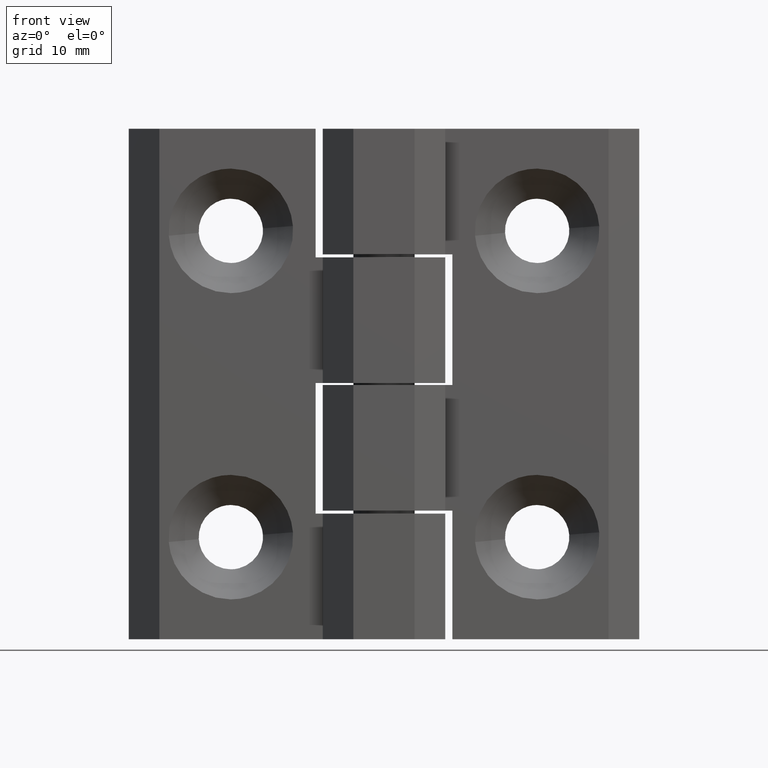
[diagram: clean part render]
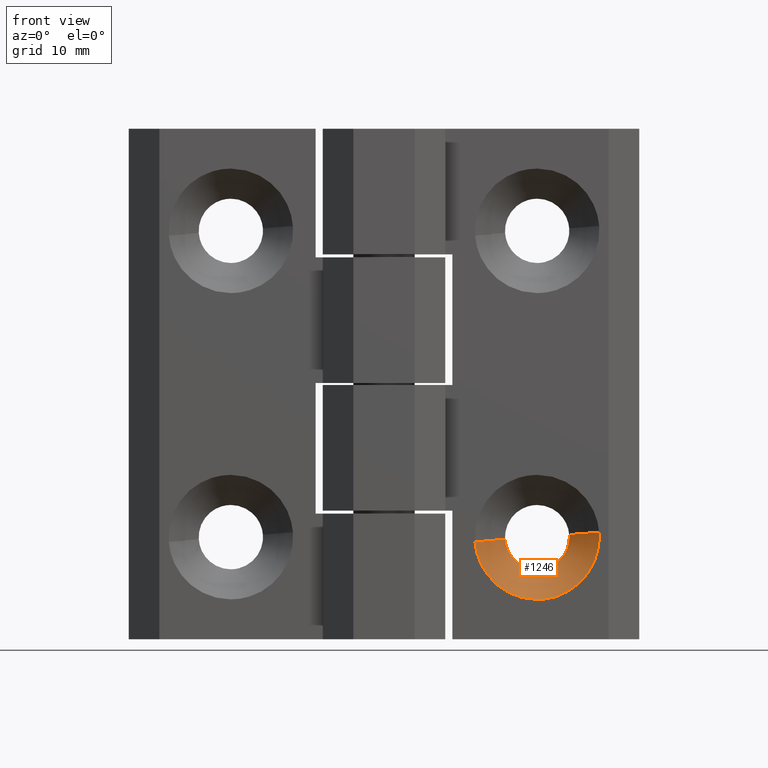
[diagram: same view with one face highlighted and labeled with its STEP entity id]
A machine part, front view. The second image highlights one B-rep face of the part: STEP entity #1246.
In plain terms, the highlighted face is a freeform B-spline surface patch.
Its self-contained STEP definition (entity closure, byte-faithful):
#937=CARTESIAN_POINT('',(18.129429528220928,3.450000163866196,9.640584707499176));
#938=VERTEX_POINT('',#937);
#939=CARTESIAN_POINT('',(15.000000712461651,3.450000163866196,6.850001037819396));
#940=VERTEX_POINT('',#939);
#941=CARTESIAN_POINT('',(18.129429528220932,3.450000163866196,9.640584707499176));
#942=CARTESIAN_POINT('',(17.808928949025468,3.450000163866195,6.850001037819395));
#943=CARTESIAN_POINT('',(15.000000712461651,3.450000163866196,6.850001037819396));
#951=(BOUNDED_CURVE()B_SPLINE_CURVE(2,(#941,#942,#943),.UNSPECIFIED.,.F.,.U.)B_SPLINE_CURVE_WITH_KNOTS((3,3),(0.269767755887751,0.500000000000000),.UNSPECIFIED.)CURVE()GEOMETRIC_REPRESENTATION_ITEM()RATIONAL_B_SPLINE_CURVE((0.957343736438684,0.730266147789276,1.0))REPRESENTATION_ITEM(''));
#952=EDGE_CURVE('',#938,#940,#951,.T.);
#991=CARTESIAN_POINT('',(11.855875220630450,3.450000163866179,9.807699214754114));
#992=VERTEX_POINT('',#991);
#998=CARTESIAN_POINT('',(15.000000712461651,3.450000163866196,6.850001037819396));
#999=CARTESIAN_POINT('',(12.036775538619558,3.450000163866196,6.850001037819396));
#1000=CARTESIAN_POINT('',(11.855875220630441,3.450000163866196,9.807699214754113));
#1008=(BOUNDED_CURVE()B_SPLINE_CURVE(2,(#998,#999,#1000),.UNSPECIFIED.,.F.,.U.)B_SPLINE_CURVE_WITH_KNOTS((3,3),(0.500000000000000,0.739332976895758),.UNSPECIFIED.)CURVE()GEOMETRIC_REPRESENTATION_ITEM()RATIONAL_B_SPLINE_CURVE((1.0,0.719603976115183,0.976072073079065))REPRESENTATION_ITEM(''));
#1009=EDGE_CURVE('',#940,#992,#1008,.T.);
#1036=CARTESIAN_POINT('',(18.140291173143300,3.450000163863354,10.247148119100739));
#1037=VERTEX_POINT('',#1036);
#1038=CARTESIAN_POINT('',(18.140291173143300,3.450000163863355,10.247148119100739));
#1039=CARTESIAN_POINT('',(18.150001574540330,3.450000163866195,10.123765770865315));
#1040=CARTESIAN_POINT('',(18.150001574540330,3.450000163866196,10.000001899898081));
#1041=CARTESIAN_POINT('',(18.150001574540333,3.450000163866196,9.819704560121375));
#1042=CARTESIAN_POINT('',(18.129429528220928,3.450000163866196,9.640584707499176));
#1050=(BOUNDED_CURVE()B_SPLINE_CURVE(2,(#1038,#1039,#1040,#1041,#1042),.UNSPECIFIED.,.F.,.U.)B_SPLINE_CURVE_WITH_KNOTS((3,2,3),(0.236331300630386,0.250000000000000,0.269767755887751),.UNSPECIFIED.)CURVE()GEOMETRIC_REPRESENTATION_ITEM()RATIONAL_B_SPLINE_CURVE((0.969723356166846,0.983986122578561,1.0,0.976840633397272,0.957343736438685))REPRESENTATION_ITEM(''));
#1051=EDGE_CURVE('',#1037,#938,#1050,.T.);
#1139=CARTESIAN_POINT('',(21.081197447341520,0.500000023745977,10.478602462490610));
#1140=VERTEX_POINT('',#1139);
#1141=CARTESIAN_POINT('',(18.140291173143300,3.450000163863354,10.247148119100739));
#1142=CARTESIAN_POINT('',(21.081197447341520,0.500000023745977,10.478602462490610));
#1143=QUASI_UNIFORM_CURVE('',1,(#1141,#1142),.UNSPECIFIED.,.F.,.U.);
#1144=EDGE_CURVE('',#1037,#1140,#1143,.T.);
#1161=CARTESIAN_POINT('',(8.918803977581773,0.500000023745975,9.521401337305553));
#1162=VERTEX_POINT('',#1161);
#1178=CARTESIAN_POINT('',(11.855875220630450,3.450000163866179,9.807699214754114));
#1179=CARTESIAN_POINT('',(8.918803977581773,0.500000023745975,9.521401337305553));
#1180=QUASI_UNIFORM_CURVE('',1,(#1178,#1179),.UNSPECIFIED.,.F.,.U.);
#1181=EDGE_CURVE('',#992,#1162,#1180,.T.);
#1187=CARTESIAN_POINT('',(11.925684907213995,3.523750167369133,9.854548490720037));
#1188=CARTESIAN_POINT('',(11.929434305086531,3.523750167369132,9.806907873714135));
#1189=CARTESIAN_POINT('',(12.174592769231934,3.523750167369133,6.691874235476639));
#1190=CARTESIAN_POINT('',(15.241360573057509,3.523750167369133,6.933234096072502));
#1191=CARTESIAN_POINT('',(18.308128376883083,3.523750167369133,7.174593956668364));
#1192=CARTESIAN_POINT('',(18.065056358494299,3.523750167369134,10.263116787951567));
#1193=CARTESIAN_POINT('',(18.063354233049651,3.523750167369131,10.284744342337788));
#1194=CARTESIAN_POINT('',(8.828290589539648,0.424406270158215,9.708003180604068));
#1195=CARTESIAN_POINT('',(8.835817531555597,0.424406270158215,9.612364314312035));
#1196=CARTESIAN_POINT('',(9.327974834427176,0.424406270158215,3.358912861622311));
#1197=CARTESIAN_POINT('',(15.484532292582299,0.424406270158215,3.843444441742958));
#1198=CARTESIAN_POINT('',(21.641089750737418,0.424406270158215,4.327976021863605));
#1199=CARTESIAN_POINT('',(21.153121002071948,0.424406270158215,10.528206847262092));
#1200=CARTESIAN_POINT('',(21.149703973535296,0.424406270158215,10.571624311437919));
#1208=(BOUNDED_SURFACE()B_SPLINE_SURFACE(2,1,((#1187,#1194),(#1188,#1195),(#1189,#1196),(#1190,#1197),(#1191,#1198),(#1192,#1199),(#1193,#1200)),.UNSPECIFIED.,.F.,.F.,.U.)B_SPLINE_SURFACE_WITH_KNOTS((3,1,2,1,3),(2,2),(0.0,0.229233173063570,10.461293587331550,20.693354001599531,20.796306009318538),(0.0,4.384205706882022),.UNSPECIFIED.)GEOMETRIC_REPRESENTATION_ITEM()RATIONAL_B_SPLINE_SURFACE(((1.013123621088825,1.013123621088825),(1.006561810544413,1.006561810544413),(0.707106781186548,0.707106781186548),(1.0,1.0),(0.707106781186548,0.707106781186548),(1.002947006145710,1.002947006145710),(1.005894012291421,1.005894012291421)))REPRESENTATION_ITEM('')SURFACE());
#1209=ORIENTED_EDGE('',*,*,#1051,.T.);
#1210=ORIENTED_EDGE('',*,*,#952,.T.);
#1211=ORIENTED_EDGE('',*,*,#1009,.T.);
#1212=ORIENTED_EDGE('',*,*,#1181,.T.);
#1213=CARTESIAN_POINT('',(15.000000712461651,0.500000023748726,3.900000897701931));
#1214=VERTEX_POINT('',#1213);
#1215=CARTESIAN_POINT('',(15.000000712461651,0.500000023748726,3.900000897701931));
#1216=CARTESIAN_POINT('',(9.361217786965144,0.500000023748726,3.900000897701931));
#1217=CARTESIAN_POINT('',(8.918803977581773,0.500000023745975,9.521401337305553));
#1225=(BOUNDED_CURVE()B_SPLINE_CURVE(2,(#1215,#1216,#1217),.UNSPECIFIED.,.F.,.U.)B_SPLINE_CURVE_WITH_KNOTS((3,3),(0.500000000000000,0.736331300631580),.UNSPECIFIED.)CURVE()GEOMETRIC_REPRESENTATION_ITEM()RATIONAL_B_SPLINE_CURVE((1.0,0.723120658606587,0.969723356169339))REPRESENTATION_ITEM(''));
#1226=EDGE_CURVE('',#1214,#1162,#1225,.T.);
#1227=ORIENTED_EDGE('',*,*,#1226,.F.);
#1228=CARTESIAN_POINT('',(21.081197447341523,0.500000023745977,10.478602462490608));
#1229=CARTESIAN_POINT('',(21.100001714657797,0.500000023748726,10.239671592042408));
#1230=CARTESIAN_POINT('',(21.100001714657800,0.500000023748726,10.000001899898081));
#1231=CARTESIAN_POINT('',(21.100001714657800,0.500000023748726,3.900000897701931));
#1232=CARTESIAN_POINT('',(15.000000712461651,0.500000023748726,3.900000897701931));
#1240=(BOUNDED_CURVE()B_SPLINE_CURVE(2,(#1228,#1229,#1230,#1231,#1232),.UNSPECIFIED.,.F.,.U.)B_SPLINE_CURVE_WITH_KNOTS((3,2,3),(0.236331300631580,0.250000000000000,0.500000000000000),.UNSPECIFIED.)CURVE()GEOMETRIC_REPRESENTATION_ITEM()RATIONAL_B_SPLINE_CURVE((0.969723356169339,0.983986122579960,1.0,0.707106781186547,1.0))REPRESENTATION_ITEM(''));
#1241=EDGE_CURVE('',#1140,#1214,#1240,.T.);
#1242=ORIENTED_EDGE('',*,*,#1241,.F.);
#1243=ORIENTED_EDGE('',*,*,#1144,.F.);
#1244=EDGE_LOOP('',(#1209,#1210,#1211,#1212,#1227,#1242,#1243));
#1245=FACE_OUTER_BOUND('',#1244,.T.);
#1246=ADVANCED_FACE('',(#1245),#1208,.F.);